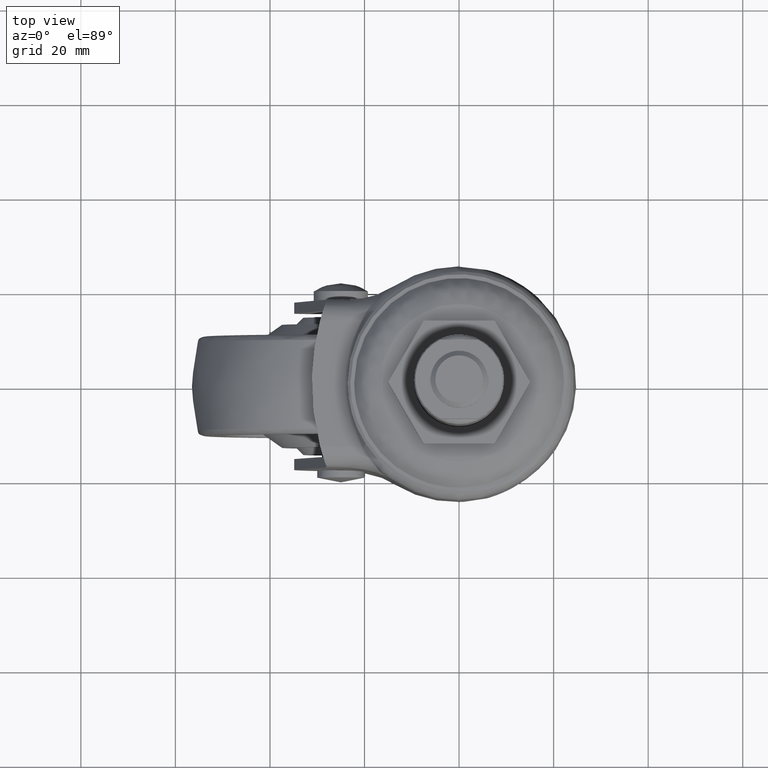
[diagram: clean part render]
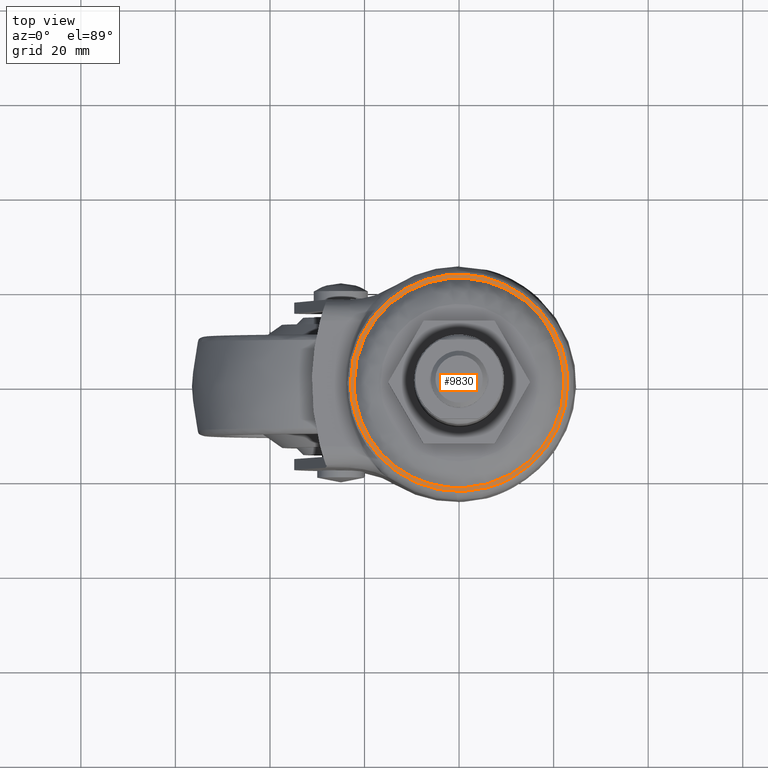
[diagram: same view with one face highlighted and labeled with its STEP entity id]
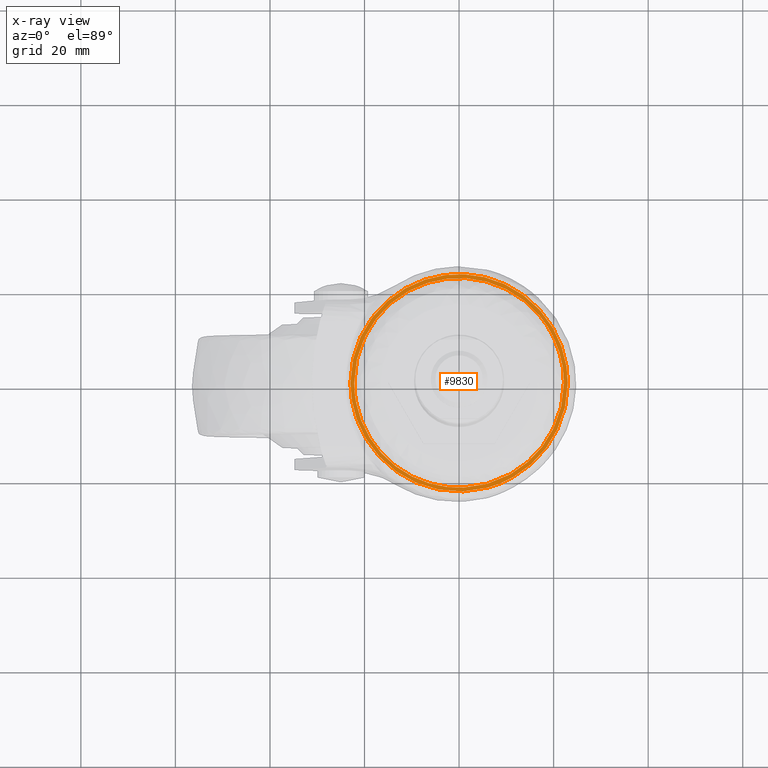
[diagram: x-ray of the same camera — body ghosted, the highlighted face saturated]
A machine part, top view. The second image highlights one B-rep face of the part: STEP entity #9830.
The next image is the same camera in x-ray: the body ghosted, the highlighted face saturated — about 0% of this face is hidden behind the body in this view.
In plain terms, the highlighted face is a freeform B-spline surface patch.
Its self-contained STEP definition (entity closure, byte-faithful):
#7878=CARTESIAN_POINT('',(6.055007268775904,-22.178386675286038,-5.502882647654231));
#7879=VERTEX_POINT('',#7878);
#7893=CARTESIAN_POINT('',(-22.990083699371048,0.0,-5.502882647408660));
#7894=VERTEX_POINT('',#7893);
#7895=CARTESIAN_POINT('',(6.055007268775904,-22.178386675286049,-5.502882647654231));
#7896=CARTESIAN_POINT('',(3.081909189145941,-22.990083699371045,-5.502882647408659));
#7897=CARTESIAN_POINT('',(0.0,-22.990083699371048,-5.502882647408660));
#7898=CARTESIAN_POINT('',(-22.990083699371052,-22.990083699371052,-5.502882647408660));
#7899=CARTESIAN_POINT('',(-22.990083699371048,0.0,-5.502882647408660));
#7907=(BOUNDED_CURVE()B_SPLINE_CURVE(2,(#7895,#7896,#7897,#7898,#7899),.UNSPECIFIED.,.F.,.U.)B_SPLINE_CURVE_WITH_KNOTS((3,2,3),(0.705098073249139,0.750000000000000,1.0),.UNSPECIFIED.)CURVE()GEOMETRIC_REPRESENTATION_ITEM()RATIONAL_B_SPLINE_CURVE((0.913685083902021,0.947394120572058,1.0,0.707106781186547,1.0))REPRESENTATION_ITEM(''));
#7908=EDGE_CURVE('',#7879,#7894,#7907,.T.);
#7910=CARTESIAN_POINT('',(22.729186363886580,3.453698868225120,-5.502882648236113));
#7911=VERTEX_POINT('',#7910);
#7912=CARTESIAN_POINT('',(-22.990083699371048,0.0,-5.502882647408660));
#7913=CARTESIAN_POINT('',(-22.990083699371052,22.990083699371052,-5.502882647408660));
#7914=CARTESIAN_POINT('',(0.0,22.990083699371048,-5.502882647408660));
#7915=CARTESIAN_POINT('',(19.760633545101967,22.990083699371052,-5.502882647408661));
#7916=CARTESIAN_POINT('',(22.729186363886576,3.453698868225121,-5.502882648236114));
#7924=(BOUNDED_CURVE()B_SPLINE_CURVE(2,(#7912,#7913,#7914,#7915,#7916),.UNSPECIFIED.,.F.,.U.)B_SPLINE_CURVE_WITH_KNOTS((3,2,3),(0.0,0.250000000000000,0.474102415374793),.UNSPECIFIED.)CURVE()GEOMETRIC_REPRESENTATION_ITEM()RATIONAL_B_SPLINE_CURVE((1.0,0.707106781186547,1.0,0.737447688868030,0.945604234431329))REPRESENTATION_ITEM(''));
#7925=EDGE_CURVE('',#7894,#7911,#7924,.T.);
#7966=CARTESIAN_POINT('',(22.990083699371048,0.0,-5.502882647408660));
#7967=VERTEX_POINT('',#7966);
#7968=CARTESIAN_POINT('',(22.729186363886576,3.453698868225121,-5.502882648236113));
#7969=CARTESIAN_POINT('',(22.990083699371048,1.736703712478464,-5.502882647408661));
#7970=CARTESIAN_POINT('',(22.990083699371048,0.0,-5.502882647408660));
#7978=(BOUNDED_CURVE()B_SPLINE_CURVE(2,(#7968,#7969,#7970),.UNSPECIFIED.,.F.,.U.)B_SPLINE_CURVE_WITH_KNOTS((3,3),(0.474102415374793,0.500000000000000),.UNSPECIFIED.)CURVE()GEOMETRIC_REPRESENTATION_ITEM()RATIONAL_B_SPLINE_CURVE((0.945604234431328,0.969659092318517,1.0))REPRESENTATION_ITEM(''));
#7979=EDGE_CURVE('',#7911,#7967,#7978,.T.);
#7981=CARTESIAN_POINT('',(22.990083699371048,0.0,-5.502882647408660));
#7982=CARTESIAN_POINT('',(22.990083699371063,-17.554875848916911,-5.502882647408660));
#7983=CARTESIAN_POINT('',(6.055007268775904,-22.178386675286049,-5.502882647654231));
#7991=(BOUNDED_CURVE()B_SPLINE_CURVE(2,(#7981,#7982,#7983),.UNSPECIFIED.,.F.,.U.)B_SPLINE_CURVE_WITH_KNOTS((3,3),(0.500000000000000,0.705098073249139),.UNSPECIFIED.)CURVE()GEOMETRIC_REPRESENTATION_ITEM()RATIONAL_B_SPLINE_CURVE((1.0,0.759712660614489,0.913685083902021))REPRESENTATION_ITEM(''));
#7992=EDGE_CURVE('',#7967,#7879,#7991,.T.);
#8033=CARTESIAN_POINT('',(10.817878308763390,-19.357372224964330,-5.502882998182633));
#8034=VERTEX_POINT('',#8033);
#8035=CARTESIAN_POINT('',(-22.175083999999998,0.0,-5.502883000000110));
#8036=VERTEX_POINT('',#8035);
#8037=CARTESIAN_POINT('',(10.817878308763394,-19.357372224964326,-5.502882998182634));
#8038=CARTESIAN_POINT('',(5.775901114061576,-22.175084000000009,-5.502883000000111));
#8039=CARTESIAN_POINT('',(0.0,-22.175083999999998,-5.502883000000110));
#8040=CARTESIAN_POINT('',(-22.175084000000012,-22.175084000000012,-5.502883000000109));
#8041=CARTESIAN_POINT('',(-22.175083999999998,0.0,-5.502883000000110));
#8049=(BOUNDED_CURVE()B_SPLINE_CURVE(2,(#8037,#8038,#8039,#8040,#8041),.UNSPECIFIED.,.F.,.U.)B_SPLINE_CURVE_WITH_KNOTS((3,2,3),(0.666878557043187,0.750000000000000,1.0),.UNSPECIFIED.)CURVE()GEOMETRIC_REPRESENTATION_ITEM()RATIONAL_B_SPLINE_CURVE((0.869991153567191,0.902617172079841,1.0,0.707106781186548,1.0))REPRESENTATION_ITEM(''));
#8050=EDGE_CURVE('',#8034,#8036,#8049,.T.);
#8101=CARTESIAN_POINT('',(19.944387006631029,9.693078844744971,-5.502882998262912));
#8102=VERTEX_POINT('',#8101);
#8116=CARTESIAN_POINT('',(-22.175083999999998,0.0,-5.502883000000110));
#8117=CARTESIAN_POINT('',(-22.175084000000012,22.175084000000012,-5.502883000000109));
#8118=CARTESIAN_POINT('',(0.0,22.175083999999998,-5.502883000000110));
#8119=CARTESIAN_POINT('',(13.878065682875240,22.175083999999995,-5.502883000000110));
#8120=CARTESIAN_POINT('',(19.944387006631036,9.693078844744973,-5.502882998262912));
#8128=(BOUNDED_CURVE()B_SPLINE_CURVE(2,(#8116,#8117,#8118,#8119,#8120),.UNSPECIFIED.,.F.,.U.)B_SPLINE_CURVE_WITH_KNOTS((3,2,3),(0.0,0.250000000000000,0.425716704552896),.UNSPECIFIED.)CURVE()GEOMETRIC_REPRESENTATION_ITEM()RATIONAL_B_SPLINE_CURVE((1.0,0.707106781186548,1.0,0.794135075216839,0.877661399761093))REPRESENTATION_ITEM(''));
#8129=EDGE_CURVE('',#8036,#8102,#8128,.T.);
#8151=CARTESIAN_POINT('',(22.175083999999998,0.0,-5.502883000000110));
#8152=VERTEX_POINT('',#8151);
#8153=CARTESIAN_POINT('',(22.175083999999998,0.0,-5.502883000000110));
#8154=CARTESIAN_POINT('',(22.175083999999998,-13.010391460016852,-5.502883000000110));
#8155=CARTESIAN_POINT('',(10.817878308763394,-19.357372224964326,-5.502882998182633));
#8163=(BOUNDED_CURVE()B_SPLINE_CURVE(2,(#8153,#8154,#8155),.UNSPECIFIED.,.F.,.U.)B_SPLINE_CURVE_WITH_KNOTS((3,3),(0.500000000000000,0.666878557043186),.UNSPECIFIED.)CURVE()GEOMETRIC_REPRESENTATION_ITEM()RATIONAL_B_SPLINE_CURVE((1.0,0.804489609106707,0.869991153567191))REPRESENTATION_ITEM(''));
#8164=EDGE_CURVE('',#8152,#8034,#8163,.T.);
#8166=CARTESIAN_POINT('',(19.944387006631025,9.693078844744971,-5.502882998262912));
#8167=CARTESIAN_POINT('',(22.175084000000005,5.103217881104352,-5.502883000000110));
#8168=CARTESIAN_POINT('',(22.175083999999998,0.0,-5.502883000000110));
#8176=(BOUNDED_CURVE()B_SPLINE_CURVE(2,(#8166,#8167,#8168),.UNSPECIFIED.,.F.,.U.)B_SPLINE_CURVE_WITH_KNOTS((3,3),(0.425716704552896,0.500000000000000),.UNSPECIFIED.)CURVE()GEOMETRIC_REPRESENTATION_ITEM()RATIONAL_B_SPLINE_CURVE((0.877661399761093,0.912971705969708,1.0))REPRESENTATION_ITEM(''));
#8177=EDGE_CURVE('',#8102,#8152,#8176,.T.);
#9813=CARTESIAN_POINT('',(-25.286792971819729,-25.280854687840272,-5.502882823704390));
#9814=CARTESIAN_POINT('',(25.286794205103920,-25.280854687840272,-5.502882823704390));
#9815=CARTESIAN_POINT('',(-25.286792971819729,25.279402281888689,-5.502882823704390));
#9816=CARTESIAN_POINT('',(25.286794205103920,25.279402281888689,-5.502882823704390));
#9817=B_SPLINE_SURFACE_WITH_KNOTS('',1,1,((#9813,#9815),(#9814,#9816)),.UNSPECIFIED.,.F.,.F.,.U.,(2,2),(2,2),(0.0,50.573587176923652),(0.0,50.560256969728968),.UNSPECIFIED.);
#9818=ORIENTED_EDGE('',*,*,#7908,.F.);
#9819=ORIENTED_EDGE('',*,*,#7992,.F.);
#9820=ORIENTED_EDGE('',*,*,#7979,.F.);
#9821=ORIENTED_EDGE('',*,*,#7925,.F.);
#9822=EDGE_LOOP('',(#9818,#9819,#9820,#9821));
#9823=FACE_OUTER_BOUND('',#9822,.T.);
#9824=ORIENTED_EDGE('',*,*,#8129,.T.);
#9825=ORIENTED_EDGE('',*,*,#8177,.T.);
#9826=ORIENTED_EDGE('',*,*,#8164,.T.);
#9827=ORIENTED_EDGE('',*,*,#8050,.T.);
#9828=EDGE_LOOP('',(#9824,#9825,#9826,#9827));
#9829=FACE_BOUND('',#9828,.T.);
#9830=ADVANCED_FACE('',(#9823,#9829),#9817,.T.);